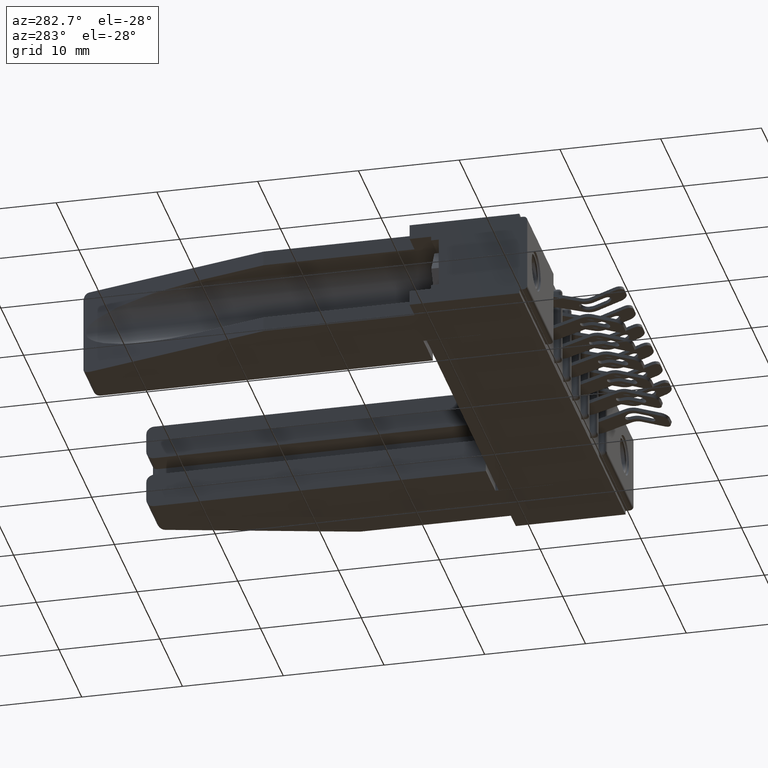
[diagram: clean part render]
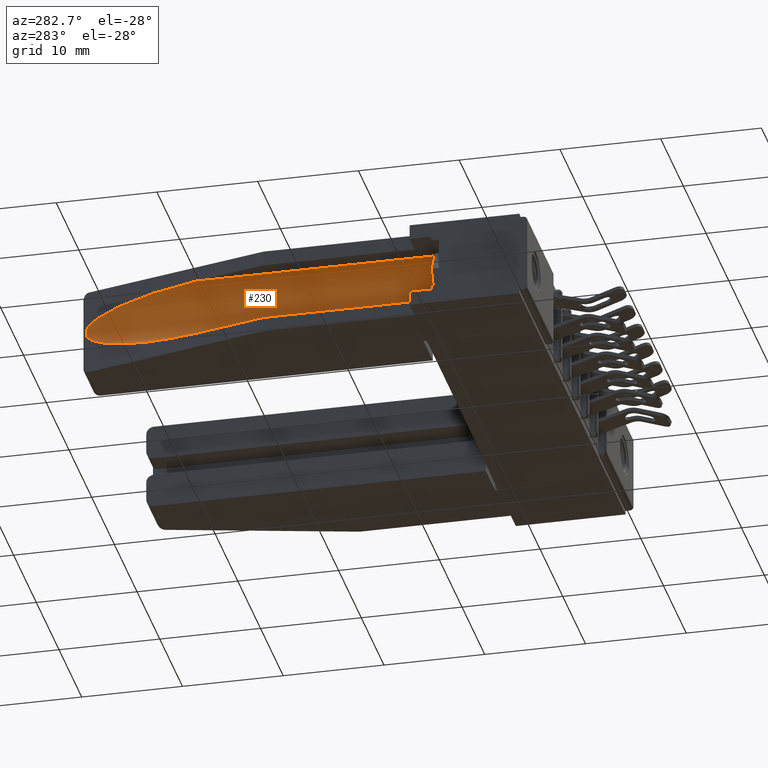
[diagram: same view with one face highlighted and labeled with its STEP entity id]
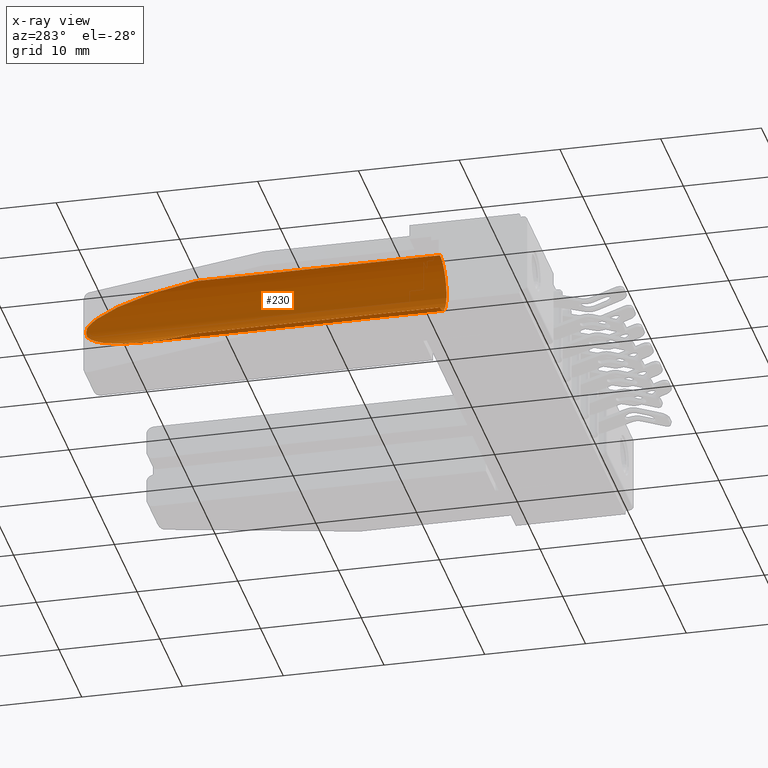
[diagram: x-ray of the same camera — body ghosted, the highlighted face saturated]
A machine part, auxiliary view. The second image highlights one B-rep face of the part: STEP entity #230.
The next image is the same camera in x-ray: the body ghosted, the highlighted face saturated — about 0% of this face is hidden behind the body in this view.
In plain terms, the highlighted cylindrical surface (edge-blend (fillet) strip) has radius 2.8575 mm, axis along (0, 1, 0).
Its self-contained STEP definition (entity closure, byte-faithful):
#15 = ORIENTED_EDGE ( 'NONE', *, *, #1392, .T. ) ;
#230 = ADVANCED_FACE ( 'NONE', ( #1781 ), #3596, .F. ) ;
#365 = CARTESIAN_POINT ( 'NONE',  ( 0.2653722146876837400, 1.527184654139258400, -0.1932766899444302300 ) ) ;
#585 = CARTESIAN_POINT ( 'NONE',  ( 0.1550000000000000300, 0.1259999999999999700, -0.1715000000000000100 ) ) ;
#963 = CARTESIAN_POINT ( 'NONE',  ( 0.2653722146876837400, 1.527184654139258400, -0.1932766899444302300 ) ) ;
#1183 = CARTESIAN_POINT ( 'NONE',  ( 0.2659676665268745400, 1.529598648082111800, -0.1902587226409276400 ) ) ;
#1392 = EDGE_CURVE ( 'NONE', #9347, #7153, #12521, .T. ) ;
#1495 = DIRECTION ( 'NONE',  ( -0.0000000000000000000, -1.000000000000000000, -0.0000000000000000000 ) ) ;
#1781 = FACE_OUTER_BOUND ( 'NONE', #10699, .T. ) ;
#1907 = EDGE_CURVE ( 'NONE', #7153, #13927, #7031, .T. ) ;
#2131 = CARTESIAN_POINT ( 'NONE',  ( 0.2673007932318817700, 1.532695689982142700, -0.1638283690697845100 ) ) ;
#2458 = CARTESIAN_POINT ( 'NONE',  ( 0.2111379438000715000, 1.307315988378668500, -0.05900000000000001800 ) ) ;
#2826 = LINE ( 'NONE', #8977, #10046 ) ;
#2833 = CARTESIAN_POINT ( 'NONE',  ( 0.2653722146876837400, 1.527184654139258400, -0.1497233100555697400 ) ) ;
#2849 = CARTESIAN_POINT ( 'NONE',  ( 0.1550000000000000000, 1.079729729729729500, -0.05900000000000003900 ) ) ;
#3423 = DIRECTION ( 'NONE',  ( -0.0000000000000000000, 1.000000000000000000, -0.0000000000000000000 ) ) ;
#3586 = EDGE_CURVE ( 'NONE', #13611, #4602, #2826, .T. ) ;
#3596 = CYLINDRICAL_SURFACE ( 'NONE', #13951, 0.1124999999999999800 ) ;
#3713 = CIRCLE ( 'NONE', #10383, 0.1124999999999999800 ) ;
#4498 = ORIENTED_EDGE ( 'NONE', *, *, #6634, .T. ) ;
#4602 = VERTEX_POINT ( 'NONE', #4861 ) ;
#4861 = CARTESIAN_POINT ( 'NONE',  ( 0.1550000000000000000, 1.079729729729729500, -0.2839999999999999700 ) ) ;
#5412 = B_SPLINE_CURVE_WITH_KNOTS ( 'NONE', 3,
 ( #2833, #10351, #5477, #2131, #6590, #12900, #6546, #5519, #1183, #9774 ),
 .UNSPECIFIED., .F., .F.,
 ( 4, 2, 2, 2, 4 ),
 ( 8.673617379884035500E-019, 0.0002913334948949183500, 0.0005826669897898358300, 0.0008740004846847532600, 0.001165333979579670800 ),
 .UNSPECIFIED. ) ;
#5477 = CARTESIAN_POINT ( 'NONE',  ( 0.2665402951778601500, 1.530919410688852400, -0.1563644579457770200 ) ) ;
#5519 = CARTESIAN_POINT ( 'NONE',  ( 0.2665477326809419000, 1.530937437894279700, -0.1865728330937866900 ) ) ;
#5530 = VERTEX_POINT ( 'NONE', #963 ) ;
#5596 = CARTESIAN_POINT ( 'NONE',  ( 0.1550000000000000300, 0.1259999999999999700, -0.05900000000000002500 ) ) ;
#5794 = VECTOR ( 'NONE', #10436, 39.37007874015748100 ) ;
#5835 = CARTESIAN_POINT ( 'NONE',  ( 0.2653722146876837400, 1.527184654139258400, -0.1497233100555697400 ) ) ;
#5882 = CARTESIAN_POINT ( 'NONE',  ( 0.2545055604987769800, 1.483130650670717600, -0.2483528604797780900 ) ) ;
#5923 = CARTESIAN_POINT ( 'NONE',  ( 0.2111379438000716400, 1.307315988378668500, -0.2840000000000000300 ) ) ;
#6546 = CARTESIAN_POINT ( 'NONE',  ( 0.2672997671973894600, 1.532692632294005800, -0.1791713265570003500 ) ) ;
#6590 = CARTESIAN_POINT ( 'NONE',  ( 0.2674994877860725800, 1.533077309800847700, -0.1676292255492849700 ) ) ;
#6634 = EDGE_CURVE ( 'NONE', #5530, #4602, #11456, .T. ) ;
#6673 = DIRECTION ( 'NONE',  ( -0.0000000000000000000, 1.000000000000000000, -0.0000000000000000000 ) ) ;
#6824 = DIRECTION ( 'NONE',  ( 0.0000000000000000000, 0.0000000000000000000, 1.000000000000000000 ) ) ;
#6936 = DIRECTION ( 'NONE',  ( 0.0000000000000000000, 0.0000000000000000000, 1.000000000000000000 ) ) ;
#7031 =( BOUNDED_CURVE ( )  B_SPLINE_CURVE ( 3, ( #11017, #2458, #7861, #11112 ),
 .UNSPECIFIED., .F., .F. ) 
 B_SPLINE_CURVE_WITH_KNOTS ( ( 4, 4 ),
 ( 4.712388980384689700, 6.088385046520238900 ),
 .UNSPECIFIED. ) 
 CURVE ( )  GEOMETRIC_REPRESENTATION_ITEM ( )  RATIONAL_B_SPLINE_CURVE ( ( 1.000000000000000000, 0.8483458633392274600, 0.8483458633392274600, 1.000000000000000000 ) ) 
 REPRESENTATION_ITEM ( '' )  );
#7034 = ORIENTED_EDGE ( 'NONE', *, *, #7075, .T. ) ;
#7073 = CARTESIAN_POINT ( 'NONE',  ( 0.1550000000000000000, 0.1259999999999999700, -0.2839999999999999700 ) ) ;
#7075 = EDGE_CURVE ( 'NONE', #13611, #9347, #3713, .T. ) ;
#7153 = VERTEX_POINT ( 'NONE', #2849 ) ;
#7808 = CARTESIAN_POINT ( 'NONE',  ( 0.1550000000000000300, -0.3075443462566659300, -0.1715000000000000100 ) ) ;
#7859 = ORIENTED_EDGE ( 'NONE', *, *, #12544, .T. ) ;
#7861 = CARTESIAN_POINT ( 'NONE',  ( 0.2545055604987769800, 1.483130650670717600, -0.09464713952022194000 ) ) ;
#8977 = CARTESIAN_POINT ( 'NONE',  ( 0.1550000000000000000, -0.3075443462566659300, -0.2839999999999999700 ) ) ;
#9347 = VERTEX_POINT ( 'NONE', #5596 ) ;
#9361 = CARTESIAN_POINT ( 'NONE',  ( 0.1550000000000000000, -0.3075443462566659300, -0.05900000000000003200 ) ) ;
#9774 = CARTESIAN_POINT ( 'NONE',  ( 0.2653722146876837400, 1.527184654139258400, -0.1932766899444302300 ) ) ;
#10046 = VECTOR ( 'NONE', #6673, 39.37007874015748100 ) ;
#10351 = CARTESIAN_POINT ( 'NONE',  ( 0.2659695340301833100, 1.529606219041284000, -0.1527507425476382100 ) ) ;
#10383 = AXIS2_PLACEMENT_3D ( 'NONE', #585, #1495, #6936 ) ;
#10436 = DIRECTION ( 'NONE',  ( -0.0000000000000000000, 1.000000000000000000, -0.0000000000000000000 ) ) ;
#10699 = EDGE_LOOP ( 'NONE', ( #10743, #7859, #4498, #11100, #7034, #15 ) ) ;
#10743 = ORIENTED_EDGE ( 'NONE', *, *, #1907, .T. ) ;
#11017 = CARTESIAN_POINT ( 'NONE',  ( 0.1550000000000000000, 1.079729729729729500, -0.05900000000000003900 ) ) ;
#11100 = ORIENTED_EDGE ( 'NONE', *, *, #3586, .F. ) ;
#11112 = CARTESIAN_POINT ( 'NONE',  ( 0.2653722146876837400, 1.527184654139258400, -0.1497233100555697400 ) ) ;
#11456 =( BOUNDED_CURVE ( )  B_SPLINE_CURVE ( 3, ( #365, #5882, #5923, #13441 ),
 .UNSPECIFIED., .F., .F. ) 
 B_SPLINE_CURVE_WITH_KNOTS ( ( 4, 4 ),
 ( 0.1948002606593472700, 1.570796326794896600 ),
 .UNSPECIFIED. ) 
 CURVE ( )  GEOMETRIC_REPRESENTATION_ITEM ( )  RATIONAL_B_SPLINE_CURVE ( ( 1.000000000000000000, 0.8483458633392274600, 0.8483458633392274600, 1.000000000000000000 ) ) 
 REPRESENTATION_ITEM ( '' )  );
#12521 = LINE ( 'NONE', #9361, #5794 ) ;
#12544 = EDGE_CURVE ( 'NONE', #13927, #5530, #5412, .T. ) ;
#12900 = CARTESIAN_POINT ( 'NONE',  ( 0.2675005102363445800, 1.533079420563984800, -0.1753409430533595100 ) ) ;
#13441 = CARTESIAN_POINT ( 'NONE',  ( 0.1550000000000000000, 1.079729729729729500, -0.2839999999999999700 ) ) ;
#13611 = VERTEX_POINT ( 'NONE', #7073 ) ;
#13927 = VERTEX_POINT ( 'NONE', #5835 ) ;
#13951 = AXIS2_PLACEMENT_3D ( 'NONE', #7808, #3423, #6824 ) ;